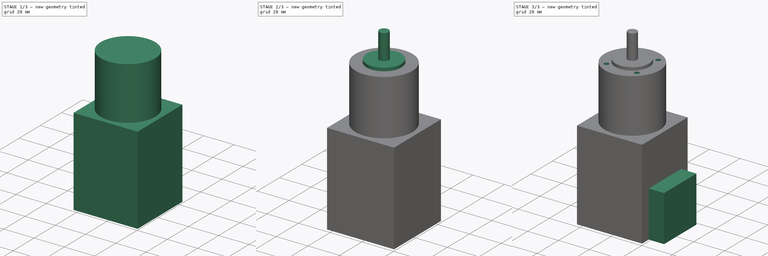
[diagram: build sequence overview — one tinted view per stage of 3, left to right]
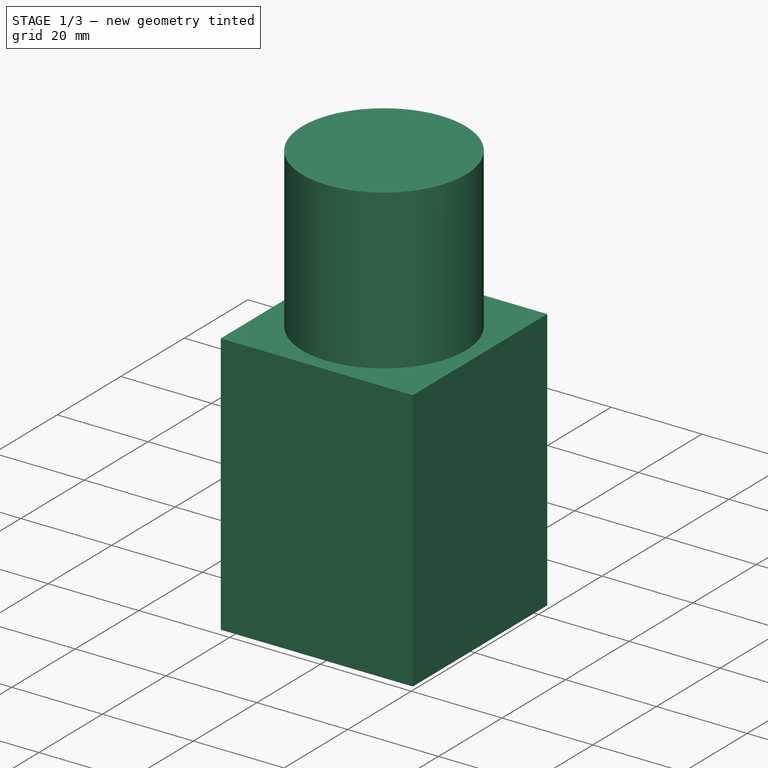
[diagram: stage 1 of 3 — iso view after this stage's code; geometry added in this stage tinted green]
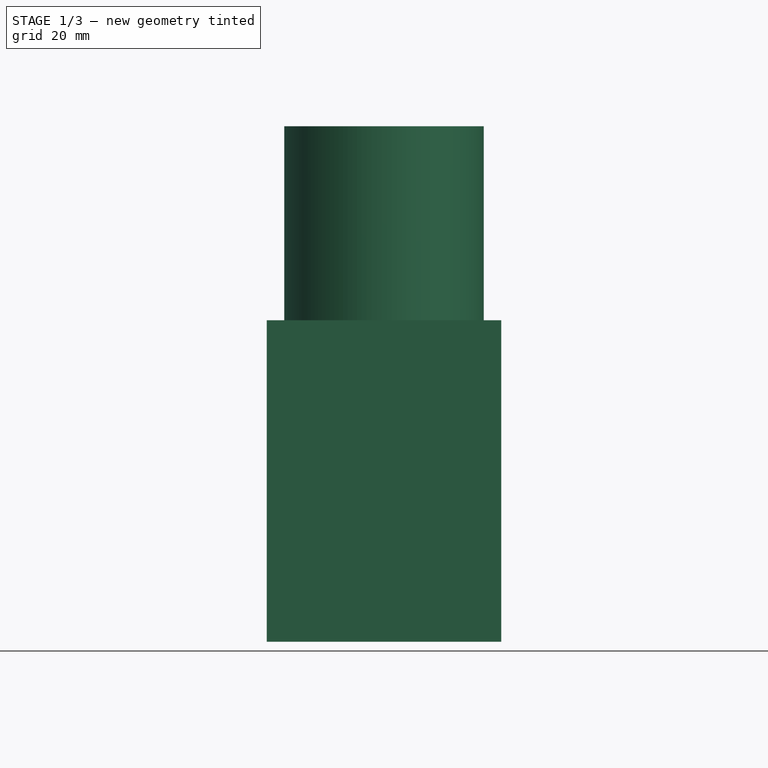
[diagram: stage 1 of 3 — front view after this stage's code; geometry added in this stage tinted green]
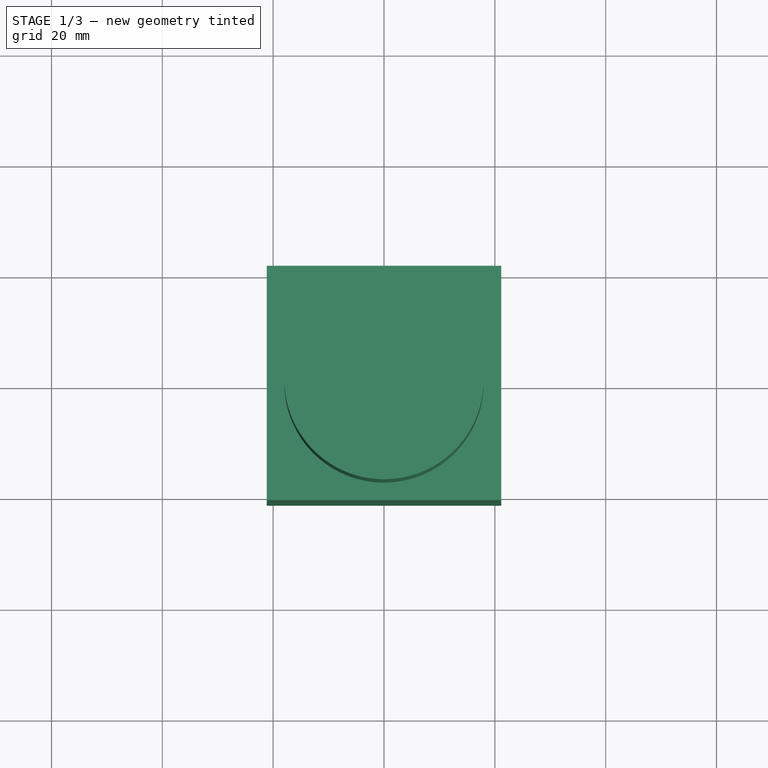
[diagram: stage 1 of 3 — top view after this stage's code; geometry added in this stage tinted green]
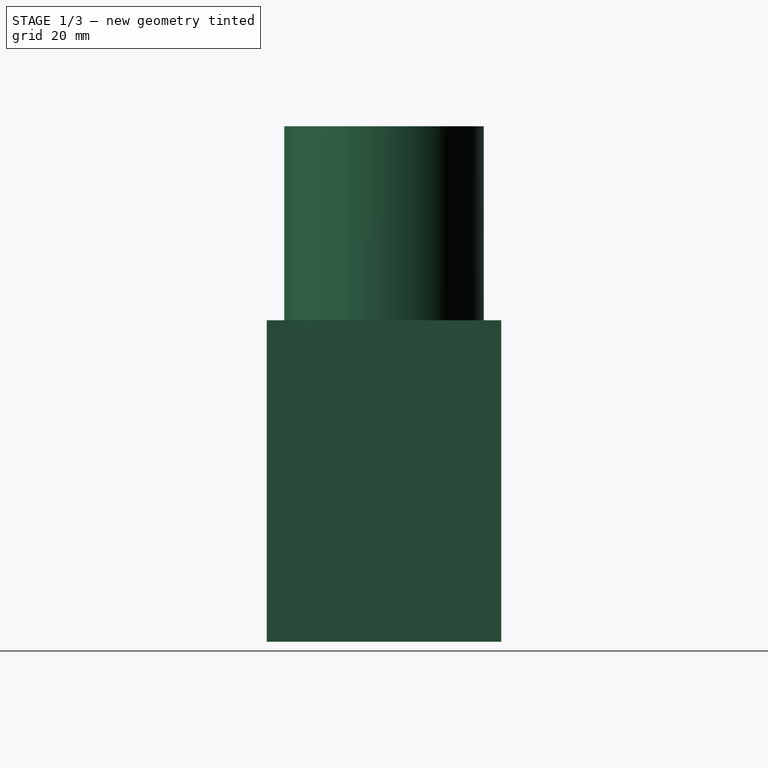
[diagram: stage 1 of 3 — right view after this stage's code; geometry added in this stage tinted green]
FCSTD DOCUMENT  (FreeCAD 0.19R24276 (Git))
Label: MOTOR-17HS13-0404D-PG27-E1000
License: All rights reserved
LicenseURL: http://en.wikipedia.org/wiki/All_rights_reserved
objects: Sketcher::SketchObject×6, PartDesign::Pad×5, PartDesign::CoordinateSystem×3, PartDesign::Pocket×1, PartDesign::Body×1, App::Part×1
note: 22 computed .brp shape members not serialized (recipe doc carries the construction recipe); baked Part::Feature solids carry a one-line shape summary decoded from their .brp

FEATURE [PartDesign::CoordinateSystem] LCS_0003
  AttacherType = Attacher::AttachEngine3D
  MapMode = 2
  Support = -> [X_Axis007]
FEATURE [Sketcher::SketchObject] Sketch013
  FullyConstrained = false
  MapMode = 5
  Support = -> [XY_Plane008]
  sketch-geometry (4):
    g0: LineSegment StartX=-21.15 StartY=-21.15 StartZ=0 EndX=21.15 EndY=-21.15 EndZ=0
    g1: LineSegment StartX=21.15 StartY=-21.15 StartZ=0 EndX=21.15 EndY=21.15 EndZ=0
    g2: LineSegment StartX=21.15 StartY=21.15 StartZ=0 EndX=-21.15 EndY=21.15 EndZ=0
    g3: LineSegment StartX=-21.15 StartY=21.15 StartZ=0 EndX=-21.15 EndY=-21.15 EndZ=0
  constraints (10):
    c: Coincident(g0,g1)
    c: Coincident(g1,g2)
    c: Coincident(g2,g3)
    c: Coincident(g3,g0)
    c: Horizontal(g2)
    c: Vertical(g1)
    c: DistanceX(g2,g2) = 42.3
    c: Equal(g3,g2)
    c: Symmetric(g0,g0,g-2)
    c: Symmetric(g0,g2,g-1)
FEATURE [PartDesign::Pad] Pad008
  AllowMultiFace = false
  Direction = (1,1,1)
  Length = 58
  Length2 = 100
  Profile = -> Sketch013
  Type = 0
FEATURE [Sketcher::SketchObject] Sketch012
  FullyConstrained = false
  MapMode = 5
  Placement = pos=(0,0,58) rot=(0,0,1;0rad)
  Support = -> [Pad008]
  sketch-geometry (1):
    g0: Circle CenterX=0 CenterY=0 CenterZ=0 NormalX=0 NormalY=0 NormalZ=1 AngleXU=0 Radius=18
  constraints (2):
    c: Coincident(g0,g-1)
    c: Diameter(g0) = 36
FEATURE [PartDesign::Pad] Pad011
  AllowMultiFace = false
  BaseFeature = -> Pad008
  Direction = (1,1,1)
  Length = 35
  Length2 = 100
  Profile = -> Sketch012
  Type = 0
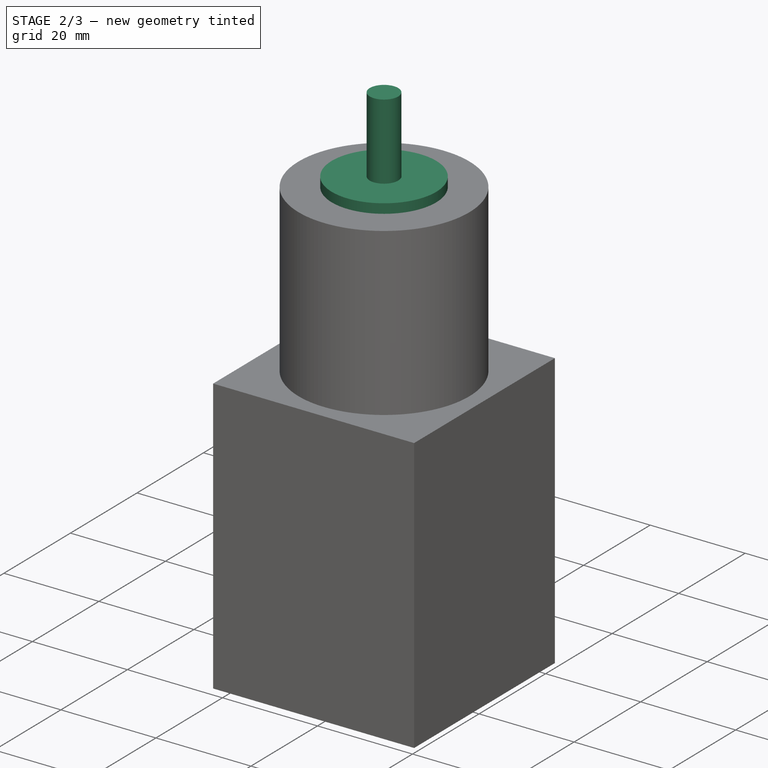
[diagram: stage 2 of 3 — iso view after this stage's code; geometry added in this stage tinted green]
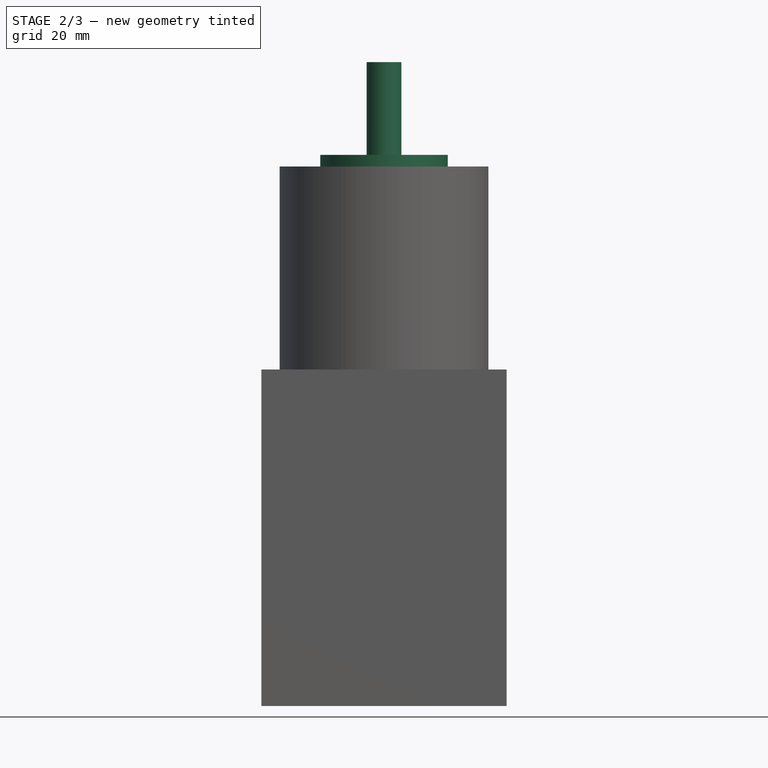
[diagram: stage 2 of 3 — front view after this stage's code; geometry added in this stage tinted green]
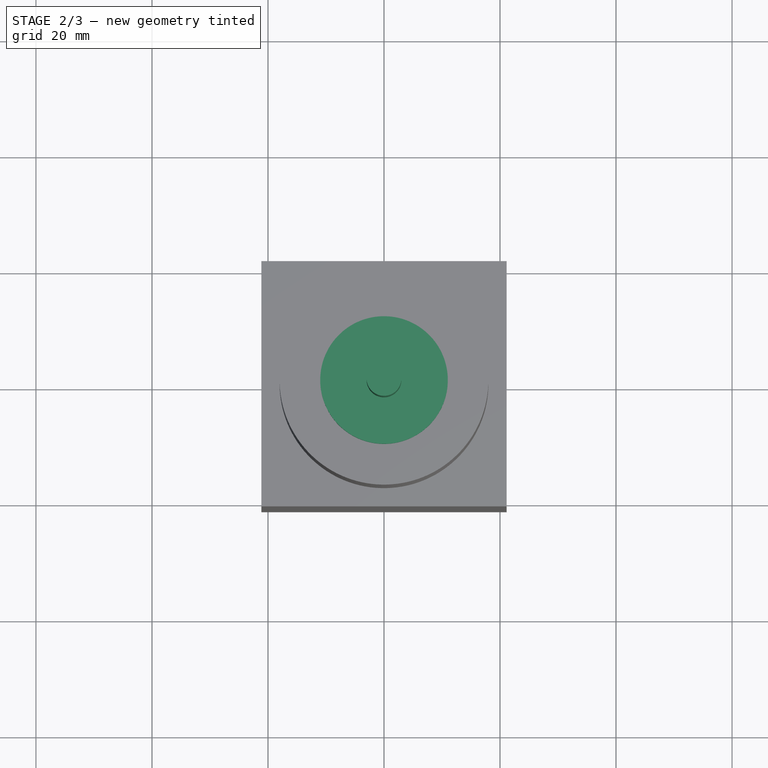
[diagram: stage 2 of 3 — top view after this stage's code; geometry added in this stage tinted green]
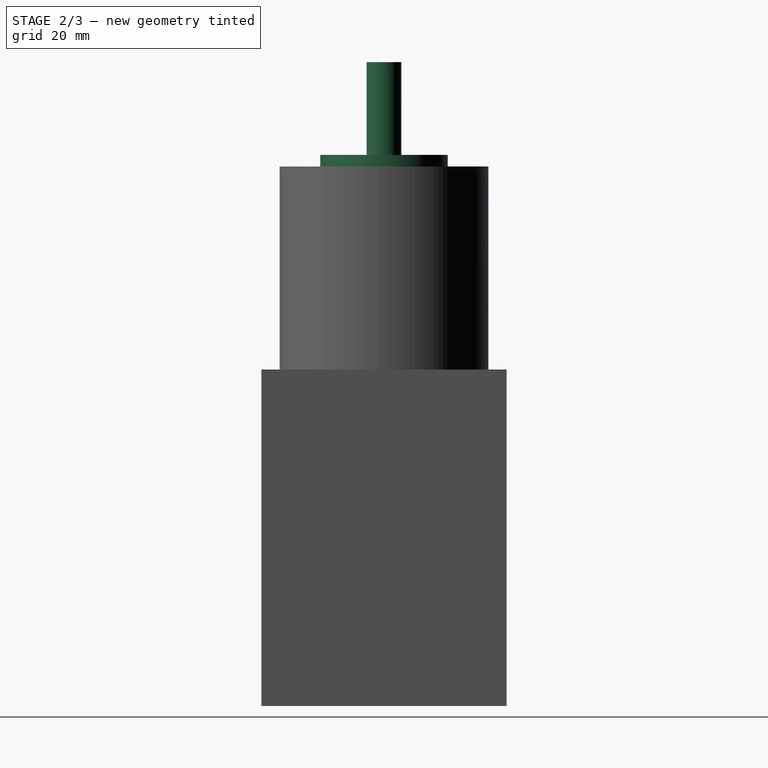
[diagram: stage 2 of 3 — right view after this stage's code; geometry added in this stage tinted green]
FEATURE [Sketcher::SketchObject] Sketch011
  FullyConstrained = false
  MapMode = 5
  Placement = pos=(0,0,93) rot=(0,0,1;0rad)
  Support = -> [Pad011]
  sketch-geometry (1):
    g0: Circle CenterX=0 CenterY=0 CenterZ=0 NormalX=0 NormalY=0 NormalZ=1 AngleXU=0 Radius=3
  constraints (2):
    c: Diameter(g0) = 6
    c: Coincident(g0,g-1)
FEATURE [PartDesign::Pad] Pad010
  AllowMultiFace = false
  BaseFeature = -> Pad011
  Direction = (1,1,1)
  Length = 18
  Length2 = 100
  Profile = -> Sketch011
  Type = 0
FEATURE [Sketcher::SketchObject] Sketch010
  FullyConstrained = false
  MapMode = 5
  Placement = pos=(0,0,93) rot=(0,0,1;0rad)
  Support = -> [Pad010]
  sketch-geometry (1):
    g0: Circle CenterX=0 CenterY=0 CenterZ=0 NormalX=0 NormalY=0 NormalZ=1 AngleXU=0 Radius=11
  constraints (2):
    c: Diameter(g0) = 22
    c: Coincident(g0,g-1)
FEATURE [PartDesign::Pad] Pad004
  AllowMultiFace = false
  BaseFeature = -> Pad010
  Direction = (1,1,1)
  Length = 2
  Length2 = 100
  Profile = -> Sketch010
  Type = 0
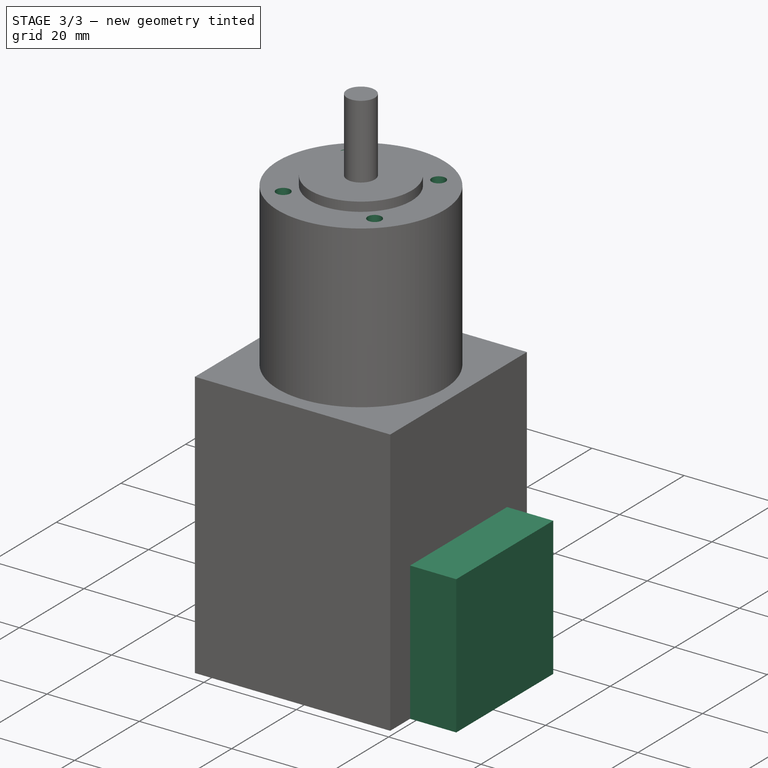
[diagram: stage 3 of 3 — iso view after this stage's code; geometry added in this stage tinted green]
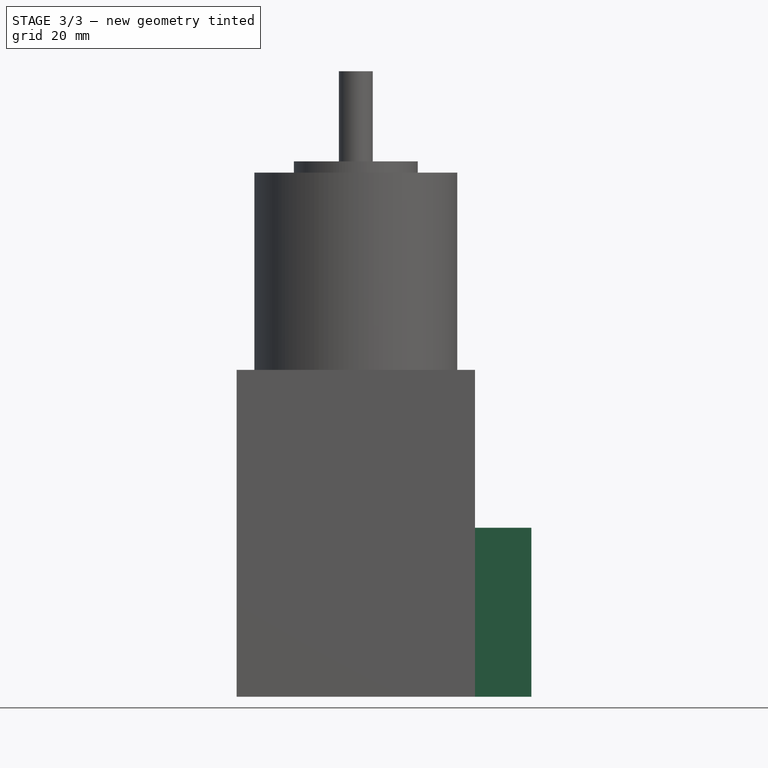
[diagram: stage 3 of 3 — front view after this stage's code; geometry added in this stage tinted green]
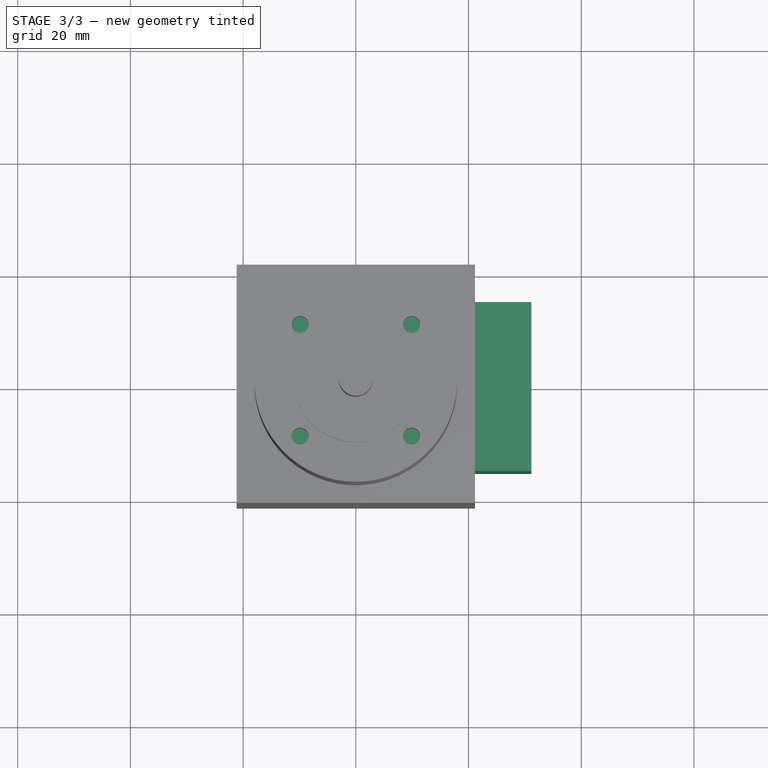
[diagram: stage 3 of 3 — top view after this stage's code; geometry added in this stage tinted green]
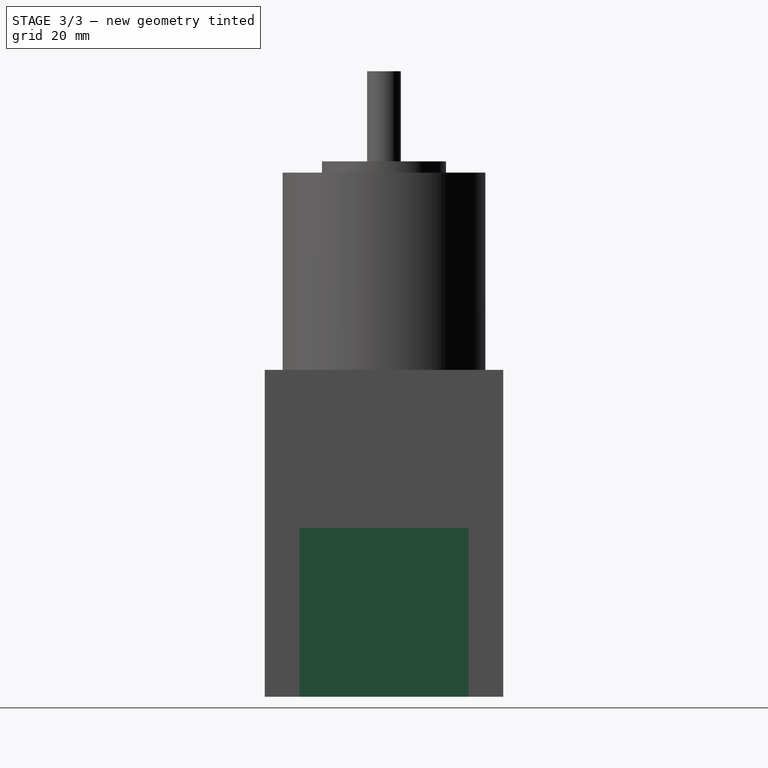
[diagram: stage 3 of 3 — right view after this stage's code; geometry added in this stage tinted green]
FEATURE [Sketcher::SketchObject] Sketch009
  FullyConstrained = false
  MapMode = 5
  Placement = pos=(0,0,93) rot=(0,0,1;0rad)
  Support = -> [Pad004]
  sketch-geometry (8):
    g0: LineSegment StartX=-9.89949 StartY=9.89949 StartZ=0 EndX=9.89949 EndY=9.89949 EndZ=0
    g1: LineSegment StartX=9.89949 StartY=9.89949 StartZ=0 EndX=9.89949 EndY=-9.89949 EndZ=0
    g2: LineSegment StartX=9.89949 StartY=-9.89949 StartZ=0 EndX=-9.89949 EndY=-9.89949 EndZ=0
    g3: LineSegment StartX=-9.89949 StartY=-9.89949 StartZ=0 EndX=-9.89949 EndY=9.89949 EndZ=0
    g4: Circle CenterX=-9.89949 CenterY=9.89949 CenterZ=0 NormalX=0 NormalY=0 NormalZ=1 AngleXU=0 Radius=1.5
    g5: Circle CenterX=9.89949 CenterY=9.89949 CenterZ=0 NormalX=0 NormalY=0 NormalZ=1 AngleXU=0 Radius=1.5
    g6: Circle CenterX=9.89949 CenterY=-9.89949 CenterZ=0 NormalX=0 NormalY=0 NormalZ=1 AngleXU=0 Radius=1.5
    g7: Circle CenterX=-9.89949 CenterY=-9.89949 CenterZ=0 NormalX=0 NormalY=0 NormalZ=1 AngleXU=0 Radius=1.5
  constraints (18):
    c: Coincident(g0,g1)
    c: Coincident(g1,g2)
    c: Coincident(g2,g3)
    c: Coincident(g3,g0)
    c: Horizontal(g2)
    c: Vertical(g3)
    c: Coincident(g4,g0)
    c: Coincident(g5,g0)
    c: Coincident(g6,g1)
    c: Coincident(g7,g2)
    c: Diameter(g7) = 3
    c: Equal(g7,g4)
    c: Equal(g7,g5)
    c: Equal(g7,g6)
    c: Equal(g3,g0)
    c: Symmetric(g4,g5,g-2)
    c: Symmetric(g5,g6,g-1)
    c: Distance(g-1,g4) = 14
FEATURE [PartDesign::Pocket] Pocket001
  AllowMultiFace = false
  BaseFeature = -> Pad004
  Length = 7
  Length2 = 100
  Profile = -> Sketch009
  Type = 0
FEATURE [Sketcher::SketchObject] Sketch006
  FullyConstrained = false
  MapMode = 5
  Placement = pos=(21.15,0,0) rot=(0.57735,0.57735,0.57735;2.0944rad)
  Support = -> [Pocket001]
  sketch-geometry (4):
    g0: LineSegment StartX=-15 StartY=30 StartZ=0 EndX=15 EndY=30 EndZ=0
    g1: LineSegment StartX=15 StartY=30 StartZ=0 EndX=15 EndY=0 EndZ=0
    g2: LineSegment StartX=15 StartY=0 StartZ=0 EndX=-15 EndY=0 EndZ=0
    g3: LineSegment StartX=-15 StartY=0 StartZ=0 EndX=-15 EndY=30 EndZ=0
  constraints (11):
    c: Coincident(g0,g1)
    c: Coincident(g1,g2)
    c: Coincident(g2,g3)
    c: Coincident(g3,g0)
    c: Horizontal(g0)
    c: Vertical(g1)
    c: Vertical(g3)
    c: PointOnObject(g1,g-1)
    c: Symmetric(g2,g1,g-2)
    c: DistanceY(g3,g3) = 30
    c: DistanceX(g0,g0) = 30
FEATURE [PartDesign::Pad] Pad009
  AllowMultiFace = false
  BaseFeature = -> Pocket001
  Direction = (1,1,1)
  Length = 10
  Length2 = 100
  Profile = -> Sketch006
  Refine = true
  Type = 0
FEATURE [PartDesign::Body] Body003
  Group = -> [Sketch013,Pad008,Sketch012,Pad011,Sketch011,Pad010,Sketch010,Pad004,Sketch009,Pocket001,Sketch006,Pad009]
  Origin = -> Origin008
  Tip = -> Pad009
FEATURE [PartDesign::CoordinateSystem] base
  AttacherType = Attacher::AttachEngine3D
  MapMode = 11
  Placement = pos=(0,0,93) rot=(0,0,1;1.5708rad)
  Support = -> [Pad009]
FEATURE [PartDesign::CoordinateSystem] hub
  AttacherType = Attacher::AttachEngine3D
  MapMode = 11
  Placement = pos=(0,0,111) rot=(0,0,1;1.5708rad)
  Support = -> [Pad009]
FEATURE [App::Part] MOTOR_17HS13_0404D_PG27_E1000
  Group = -> [LCS_0003,Body003,base,hub]
  Origin = -> Origin007
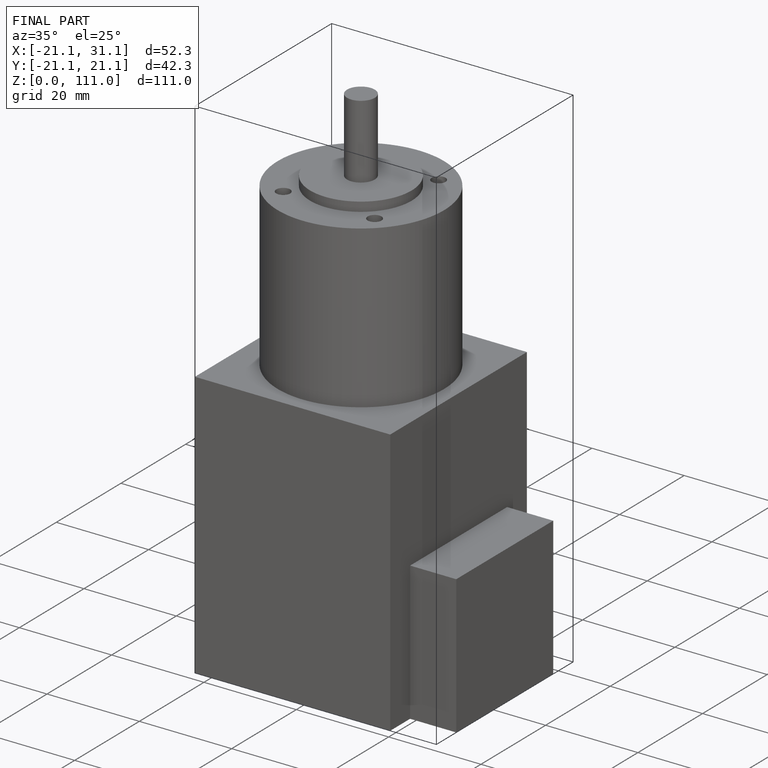
[diagram: finished part — iso view with bounding-box wireframe]
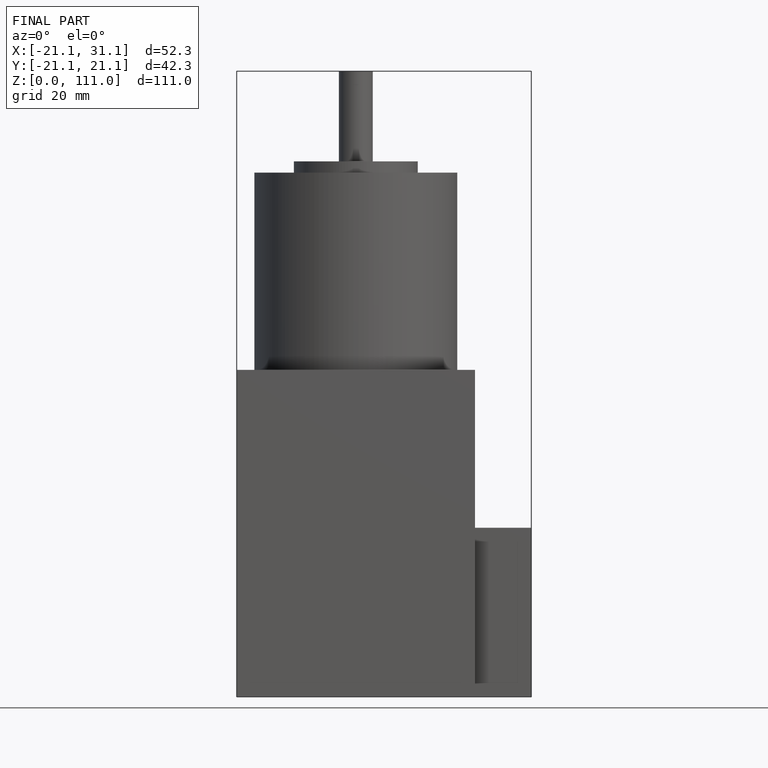
[diagram: finished part — front view with bounding-box wireframe]
